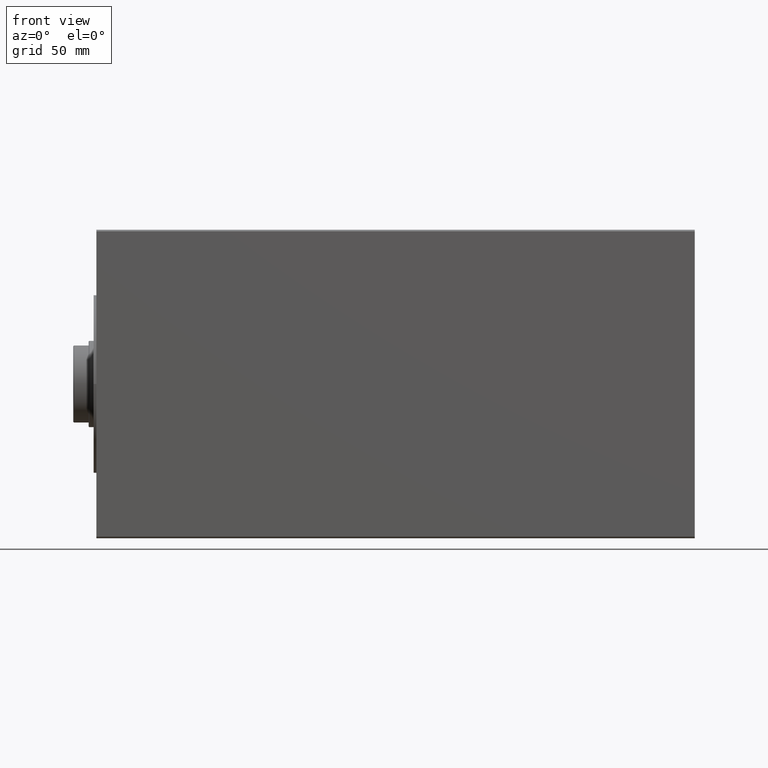
[diagram: clean part render]
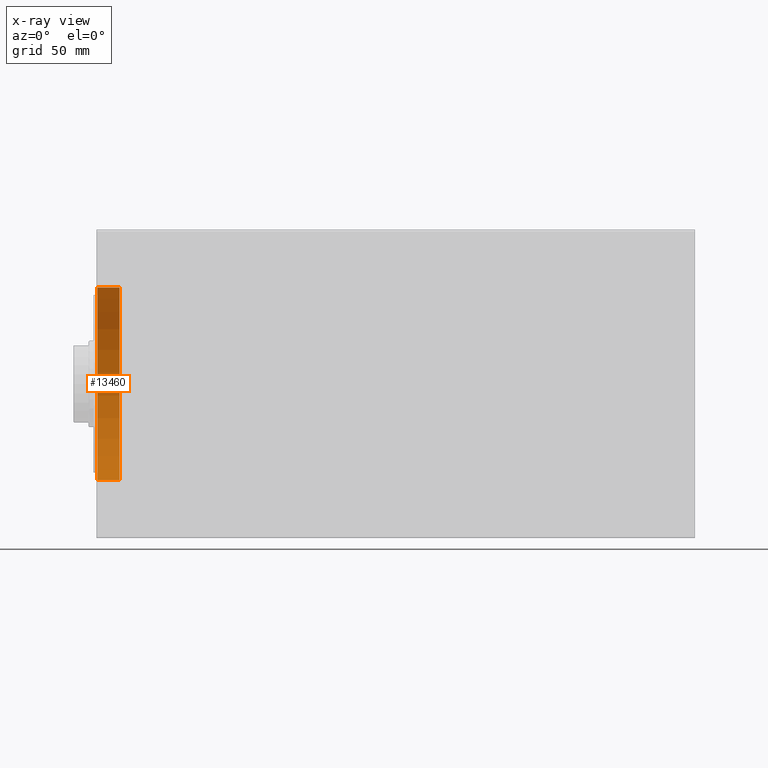
[diagram: x-ray — body ghosted, one internal face saturated and labeled with its STEP entity id]
A machine part, front view, then the same camera in x-ray: the body is ghosted and one INTERNAL B-rep face — a face not visible from any outside direction — is saturated and labeled: STEP entity #13460.
In plain terms, the highlighted cylindrical surface (partial cylindrical patch) has radius 62.5 mm, axis along (-1, -0, -0).
Its self-contained STEP definition (entity closure, byte-faithful):
#3158 = CARTESIAN_POINT ( 'NONE',  ( 15.00000000000000000, 0.000000000000000000, 62.50000000000000000 ) ) ;
#3190 = CARTESIAN_POINT ( 'NONE',  ( 15.00000000000000000, 7.654042494670957804E-15, -62.50000000000000000 ) ) ;
#5281 = AXIS2_PLACEMENT_3D ( 'NONE', #43153, #40029, #23143 ) ;
#7113 = CARTESIAN_POINT ( 'NONE',  ( 0.6999999999999160227, 0.000000000000000000, 62.50000000000000000 ) ) ;
#9443 = CARTESIAN_POINT ( 'NONE',  ( 15.00000000000000000, 0.000000000000000000, 0.000000000000000000 ) ) ;
#9884 = EDGE_CURVE ( 'NONE', #14058, #29496, #39669, .T. ) ;
#10339 = VERTEX_POINT ( 'NONE', #36822 ) ;
#11167 = ORIENTED_EDGE ( 'NONE', *, *, #32637, .F. ) ;
#12454 = CIRCLE ( 'NONE', #42988, 62.50000000000000000 ) ;
#13095 = CIRCLE ( 'NONE', #5281, 62.50000000000000000 ) ;
#13460 = ADVANCED_FACE ( 'NONE', ( #39905 ), #42801, .F. ) ;
#14058 = VERTEX_POINT ( 'NONE', #40461 ) ;
#18203 = VERTEX_POINT ( 'NONE', #7113 ) ;
#19020 = ORIENTED_EDGE ( 'NONE', *, *, #9884, .F. ) ;
#22269 = ORIENTED_EDGE ( 'NONE', *, *, #22707, .T. ) ;
#22707 = EDGE_CURVE ( 'NONE', #10339, #18203, #26312, .T. ) ;
#23143 = DIRECTION ( 'NONE',  ( 0.000000000000000000, 0.000000000000000000, -1.000000000000000000 ) ) ;
#23223 = DIRECTION ( 'NONE',  ( -1.000000000000000000, -0.000000000000000000, -0.000000000000000000 ) ) ;
#26140 = DIRECTION ( 'NONE',  ( -1.000000000000000000, -0.000000000000000000, -0.000000000000000000 ) ) ;
#26312 = LINE ( 'NONE', #3158, #42105 ) ;
#28582 = AXIS2_PLACEMENT_3D ( 'NONE', #9443, #26140, #39688 ) ;
#28755 = DIRECTION ( 'NONE',  ( -1.000000000000000000, 0.000000000000000000, 0.000000000000000000 ) ) ;
#29496 = VERTEX_POINT ( 'NONE', #36778 ) ;
#31277 = EDGE_CURVE ( 'NONE', #18203, #29496, #13095, .T. ) ;
#32637 = EDGE_CURVE ( 'NONE', #10339, #14058, #12454, .T. ) ;
#32754 = DIRECTION ( 'NONE',  ( 0.000000000000000000, 0.000000000000000000, 1.000000000000000000 ) ) ;
#35509 = ORIENTED_EDGE ( 'NONE', *, *, #31277, .T. ) ;
#36778 = CARTESIAN_POINT ( 'NONE',  ( 0.6999999999999160227, 7.654042494670957804E-15, -62.50000000000000000 ) ) ;
#36822 = CARTESIAN_POINT ( 'NONE',  ( 15.00000000000000000, 0.000000000000000000, 62.50000000000000000 ) ) ;
#38784 = EDGE_LOOP ( 'NONE', ( #19020, #11167, #22269, #35509 ) ) ;
#39178 = CARTESIAN_POINT ( 'NONE',  ( 15.00000000000000000, 0.000000000000000000, 0.000000000000000000 ) ) ;
#39634 = DIRECTION ( 'NONE',  ( -1.000000000000000000, -0.000000000000000000, -0.000000000000000000 ) ) ;
#39669 = LINE ( 'NONE', #3190, #39830 ) ;
#39688 = DIRECTION ( 'NONE',  ( 0.000000000000000000, 0.000000000000000000, 1.000000000000000000 ) ) ;
#39830 = VECTOR ( 'NONE', #23223, 1000.000000000000000 ) ;
#39905 = FACE_OUTER_BOUND ( 'NONE', #38784, .T. ) ;
#40029 = DIRECTION ( 'NONE',  ( -1.000000000000000000, 0.000000000000000000, 0.000000000000000000 ) ) ;
#40461 = CARTESIAN_POINT ( 'NONE',  ( 15.00000000000000000, 7.654042494670957804E-15, -62.50000000000000000 ) ) ;
#42105 = VECTOR ( 'NONE', #39634, 1000.000000000000000 ) ;
#42801 = CYLINDRICAL_SURFACE ( 'NONE', #28582, 62.50000000000000000 ) ;
#42988 = AXIS2_PLACEMENT_3D ( 'NONE', #39178, #28755, #32754 ) ;
#43153 = CARTESIAN_POINT ( 'NONE',  ( 0.6999999999999160227, 0.000000000000000000, 0.000000000000000000 ) ) ;